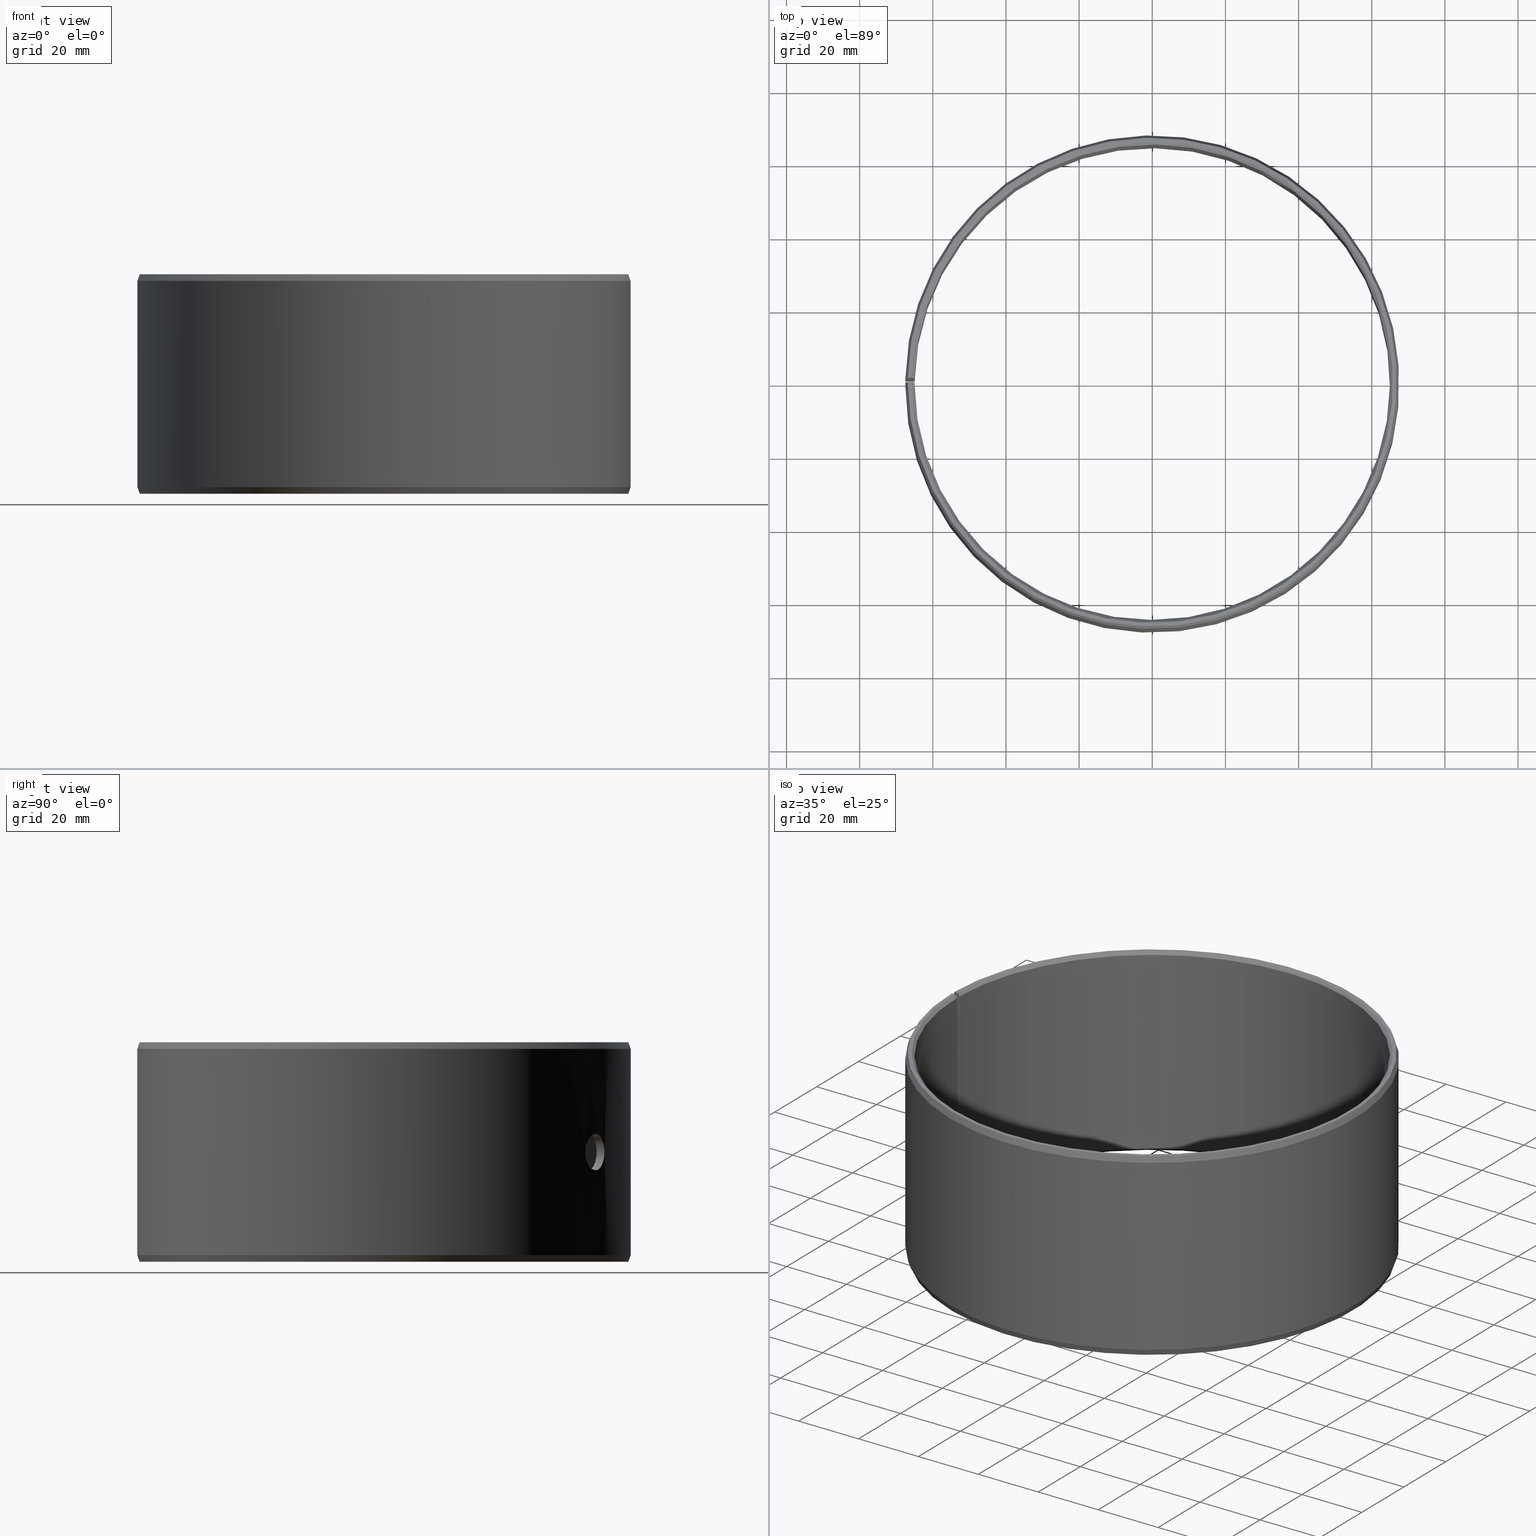
[diagram: canonical four-view strip — front | top / right | iso, engineering-drawing reading convention]
A machine part, canonical four-view strip (front | top / right | iso — engineering-drawing reading convention). The complete STEP part file that produces these views, byte-faithful:
ISO-10303-21;
HEADER;
FILE_DESCRIPTION(('STEP AP203'),'1');
FILE_NAME('440-POM13060LMB.stp','2016-09-20T20:21:43',(' '),(' '),'Spatial InterOp 3D',' ',' ');
FILE_SCHEMA(('CONFIG_CONTROL_DESIGN'));
ENDSEC;
DATA;
#1=DESIGN_CONTEXT('',#51,'design');
#2=APPLICATION_PROTOCOL_DEFINITION('INTERNATIONAL STANDARD','config_control_design',1994,#51);
#3=PRODUCT_CATEGORY_RELATIONSHIP('NONE','NONE',#52,#53);
#4=DATE_AND_TIME(#54,#55);
#5=DATE_TIME_ROLE('creation_date');
#6=DATE_TIME_ROLE('classification_date');
#7=PERSON_AND_ORGANIZATION_ROLE('creator');
#8=PERSON_AND_ORGANIZATION_ROLE('design_supplier');
#9=PERSON_AND_ORGANIZATION_ROLE('classification_officer');
#10=PERSON_AND_ORGANIZATION_ROLE('design_owner');
#11=APPROVAL_PERSON_ORGANIZATION(#56,#57,#58);
#12=APPROVAL_DATE_TIME(#4,#57);
#13=CC_DESIGN_APPROVAL(#57,(#59,#60,#61));
#14=CC_DESIGN_DATE_AND_TIME_ASSIGNMENT(#4,#5,(#61));
#15=CC_DESIGN_DATE_AND_TIME_ASSIGNMENT(#4,#6,(#59));
#16=CC_DESIGN_PERSON_AND_ORGANIZATION_ASSIGNMENT(#56,#10,(#62));
#17=CC_DESIGN_PERSON_AND_ORGANIZATION_ASSIGNMENT(#56,#7,(#61));
#18=CC_DESIGN_PERSON_AND_ORGANIZATION_ASSIGNMENT(#56,#7,(#60));
#19=CC_DESIGN_PERSON_AND_ORGANIZATION_ASSIGNMENT(#56,#8,(#60));
#20=CC_DESIGN_SECURITY_CLASSIFICATION(#59,(#60));
#21=CC_DESIGN_PERSON_AND_ORGANIZATION_ASSIGNMENT(#56,#9,(#59));
#22=SHAPE_DEFINITION_REPRESENTATION(#63,#64);
#23=DESIGN_CONTEXT('',#65,'design');
#24=APPLICATION_PROTOCOL_DEFINITION('INTERNATIONAL STANDARD','config_control_design',1994,#65);
#25=PRODUCT_CATEGORY_RELATIONSHIP('NONE','NONE',#66,#67);
#26=DATE_AND_TIME(#68,#69);
#27=DATE_TIME_ROLE('creation_date');
#28=DATE_TIME_ROLE('classification_date');
#29=PERSON_AND_ORGANIZATION_ROLE('creator');
#30=PERSON_AND_ORGANIZATION_ROLE('design_supplier');
#31=PERSON_AND_ORGANIZATION_ROLE('classification_officer');
#32=PERSON_AND_ORGANIZATION_ROLE('design_owner');
#33=APPROVAL_PERSON_ORGANIZATION(#70,#71,#72);
#34=APPROVAL_DATE_TIME(#26,#71);
#35=CC_DESIGN_APPROVAL(#71,(#73,#74,#75));
#36=CC_DESIGN_DATE_AND_TIME_ASSIGNMENT(#26,#27,(#75));
#37=CC_DESIGN_DATE_AND_TIME_ASSIGNMENT(#26,#28,(#73));
#38=CC_DESIGN_PERSON_AND_ORGANIZATION_ASSIGNMENT(#70,#32,(#76));
#39=CC_DESIGN_PERSON_AND_ORGANIZATION_ASSIGNMENT(#70,#29,(#75));
#40=CC_DESIGN_PERSON_AND_ORGANIZATION_ASSIGNMENT(#70,#29,(#74));
#41=CC_DESIGN_PERSON_AND_ORGANIZATION_ASSIGNMENT(#70,#30,(#74));
#42=CC_DESIGN_SECURITY_CLASSIFICATION(#73,(#74));
#43=CC_DESIGN_PERSON_AND_ORGANIZATION_ASSIGNMENT(#70,#31,(#73));
#44=CONTEXT_DEPENDENT_SHAPE_REPRESENTATION(#77,#78);
#45=SHAPE_DEFINITION_REPRESENTATION(#79,#80);
#46=SHAPE_REPRESENTATION_RELATIONSHIP('NONE','NONE',#80,#81);
#47= (GEOMETRIC_REPRESENTATION_CONTEXT(3)GLOBAL_UNCERTAINTY_ASSIGNED_CONTEXT((#84))GLOBAL_UNIT_ASSIGNED_CONTEXT((#86,#87,#88))REPRESENTATION_CONTEXT('NONE','WORKSPACE'));
#51=APPLICATION_CONTEXT('CONFIGURATION CONTROLLED 3D DESIGNS OF MECHANICAL PARTS AND ASSEMBLIES');
#52=PRODUCT_CATEGORY('part','NONE');
#53=PRODUCT_RELATED_PRODUCT_CATEGORY('detail',' ',(#62));
#54=CALENDAR_DATE(2016,20,8);
#55=LOCAL_TIME(22,21,43.0,#90);
#56=PERSON_AND_ORGANIZATION(#91,#92);
#57=APPROVAL(#93,'SOLID MODEL');
#58=APPROVAL_ROLE('APPROVED');
#59=SECURITY_CLASSIFICATION('','',#94);
#60=PRODUCT_DEFINITION_FORMATION_WITH_SPECIFIED_SOURCE(' ','NONE',#62,.NOT_KNOWN.);
#61=PRODUCT_DEFINITION('NONE','NONE',#60,#1);
#62=PRODUCT('','','PART--DESC',(#95));
#63=PRODUCT_DEFINITION_SHAPE('NONE','NONE',#61);
#64=SHAPE_REPRESENTATION('',(#96,#97),#98);
#65=APPLICATION_CONTEXT('CONFIGURATION CONTROLLED 3D DESIGNS OF MECHANICAL PARTS AND ASSEMBLIES');
#66=PRODUCT_CATEGORY('part','NONE');
#67=PRODUCT_RELATED_PRODUCT_CATEGORY('detail',' ',(#76));
#68=CALENDAR_DATE(2016,20,8);
#69=LOCAL_TIME(22,21,43.0,#99);
#70=PERSON_AND_ORGANIZATION(#100,#101);
#71=APPROVAL(#102,'SOLID MODEL');
#72=APPROVAL_ROLE('APPROVED');
#73=SECURITY_CLASSIFICATION('','',#103);
#74=PRODUCT_DEFINITION_FORMATION_WITH_SPECIFIED_SOURCE(' ','NONE',#76,.NOT_KNOWN.);
#75=PRODUCT_DEFINITION('440-POM13060LMB','440-POM13060LMB',#74,#23);
#76=PRODUCT('440-POM13060LMB','440-POM13060LMB','PART-440-POM13060LMB-DESC',(#104));
#77=(REPRESENTATION_RELATIONSHIP('','',#80,#64)REPRESENTATION_RELATIONSHIP_WITH_TRANSFORMATION(#107)SHAPE_REPRESENTATION_RELATIONSHIP());
#78=PRODUCT_DEFINITION_SHAPE('NAUO-PROD-DEF','NAUO-PROD-DEF',#109);
#79=PRODUCT_DEFINITION_SHAPE('NONE','NONE',#75);
#80=SHAPE_REPRESENTATION('440-POM13060LMB',(#96),#98);
#81=ADVANCED_BREP_SHAPE_REPRESENTATION('',(#110),#47);
#84=UNCERTAINTY_MEASURE_WITH_UNIT(LENGTH_MEASURE(1.0E-006),#86,'','');
#86= (CONVERSION_BASED_UNIT('METRE',#113)LENGTH_UNIT()NAMED_UNIT(#116));
#87= (NAMED_UNIT(#118)PLANE_ANGLE_UNIT()SI_UNIT($,.RADIAN.));
#88= (NAMED_UNIT(#118)SOLID_ANGLE_UNIT()SI_UNIT($,.STERADIAN.));
#90=COORDINATED_UNIVERSAL_TIME_OFFSET(1,0,.AHEAD.);
#91=PERSON('','UNSPECIFIED',$,$,$,$);
#92=ORGANIZATION('UNSPECIFIED','UNSPECIFIED','UNSPECIFIED');
#93=APPROVAL_STATUS('approved');
#94=SECURITY_CLASSIFICATION_LEVEL('unclassified');
#95=MECHANICAL_CONTEXT('',#51,'mechanical');
#96=AXIS2_PLACEMENT_3D('',#124,#125,#126);
#97=AXIS2_PLACEMENT_3D('',#127,#128,#129);
#98= (GEOMETRIC_REPRESENTATION_CONTEXT(3)GLOBAL_UNCERTAINTY_ASSIGNED_CONTEXT((#132))GLOBAL_UNIT_ASSIGNED_CONTEXT((#134,#135,#136))REPRESENTATION_CONTEXT('NONE','WORKSPACE'));
#99=COORDINATED_UNIVERSAL_TIME_OFFSET(1,0,.AHEAD.);
#100=PERSON('','UNSPECIFIED',$,$,$,$);
#101=ORGANIZATION('UNSPECIFIED','UNSPECIFIED','UNSPECIFIED');
#102=APPROVAL_STATUS('approved');
#103=SECURITY_CLASSIFICATION_LEVEL('unclassified');
#104=MECHANICAL_CONTEXT('',#65,'mechanical');
#107=ITEM_DEFINED_TRANSFORMATION('','',#96,#97);
#109=NEXT_ASSEMBLY_USAGE_OCCURRENCE('440-POM13060LMB','440-POM13060LMB','440-POM13060LMB',#61,#75,$);
#110=MANIFOLD_SOLID_BREP('',#138);
#113=LENGTH_MEASURE_WITH_UNIT(LENGTH_MEASURE(1.0),#139);
#116=DIMENSIONAL_EXPONENTS(1.0,0.0,0.0,0.0,0.0,0.0,0.0);
#118=DIMENSIONAL_EXPONENTS(0.0,0.0,0.0,0.0,0.0,0.0,0.0);
#124=CARTESIAN_POINT('',(0.0,0.0,0.0));
#125=DIRECTION('',(0.0,0.0,1.0));
#126=DIRECTION('',(1.0,0.0,0.0));
#127=CARTESIAN_POINT('',(0.0,0.0,0.0));
#128=DIRECTION('',(5.48707263966374E-016,-5.48707263966376E-016,1.0));
#129=DIRECTION('',(1.39349996950756E-015,1.0,5.48707263966375E-016));
#132=UNCERTAINTY_MEASURE_WITH_UNIT(LENGTH_MEASURE(1.0E-006),#134,'','');
#134= (CONVERSION_BASED_UNIT('METRE',#142)LENGTH_UNIT()NAMED_UNIT(#145));
#135= (NAMED_UNIT(#147)PLANE_ANGLE_UNIT()SI_UNIT($,.RADIAN.));
#136= (NAMED_UNIT(#147)SOLID_ANGLE_UNIT()SI_UNIT($,.STERADIAN.));
#138=CLOSED_SHELL('',(#153,#154,#155,#156,#157,#158,#159,#160,#161,#162,#163));
#139= (NAMED_UNIT(#116)LENGTH_UNIT()SI_UNIT($,.METRE.));
#142=LENGTH_MEASURE_WITH_UNIT(LENGTH_MEASURE(1.0),#165);
#145=DIMENSIONAL_EXPONENTS(1.0,0.0,0.0,0.0,0.0,0.0,0.0);
#147=DIMENSIONAL_EXPONENTS(0.0,0.0,0.0,0.0,0.0,0.0,0.0);
#153=ADVANCED_FACE('',(#166),#167,.F.);
#154=ADVANCED_FACE('',(#168),#169,.T.);
#155=ADVANCED_FACE('',(#170),#171,.T.);
#156=ADVANCED_FACE('',(#172),#173,.T.);
#157=ADVANCED_FACE('',(#174),#175,.T.);
#158=ADVANCED_FACE('',(#176),#177,.F.);
#159=ADVANCED_FACE('',(#178),#179,.T.);
#160=ADVANCED_FACE('',(#180),#181,.F.);
#161=ADVANCED_FACE('',(#182,#183),#184,.F.);
#162=ADVANCED_FACE('',(#185,#186),#187,.T.);
#163=ADVANCED_FACE('',(#188,#189),#190,.F.);
#165= (NAMED_UNIT(#145)LENGTH_UNIT()SI_UNIT($,.METRE.));
#166=FACE_OUTER_BOUND('',#192,.T.);
#167=CONICAL_SURFACE('',#193,0.065,0.785398163397462);
#168=FACE_OUTER_BOUND('',#194,.T.);
#169=PLANE('',#195);
#170=FACE_OUTER_BOUND('',#196,.T.);
#171=CONICAL_SURFACE('',#197,0.0668448535783209,0.34906585039887);
#172=FACE_OUTER_BOUND('',#198,.T.);
#173=CONICAL_SURFACE('',#199,0.0675,0.34906585039887);
#174=FACE_OUTER_BOUND('',#200,.T.);
#175=PLANE('',#201);
#176=FACE_OUTER_BOUND('',#202,.T.);
#177=CONICAL_SURFACE('',#203,0.0658,0.785398163397462);
#178=FACE_OUTER_BOUND('',#204,.T.);
#179=PLANE('',#205);
#180=FACE_OUTER_BOUND('',#206,.T.);
#181=PLANE('',#207);
#182=FACE_OUTER_BOUND('',#208,.T.);
#183=FACE_BOUND('',#209,.T.);
#184=CYLINDRICAL_SURFACE('',#210,0.065);
#185=FACE_OUTER_BOUND('',#211,.T.);
#186=FACE_BOUND('',#212,.T.);
#187=CYLINDRICAL_SURFACE('',#213,0.0675);
#188=FACE_OUTER_BOUND('',#214,.T.);
#189=FACE_OUTER_BOUND('',#215,.T.);
#190=CYLINDRICAL_SURFACE('',#216,0.005);
#192=EDGE_LOOP('',(#217,#218,#219,#220));
#193=AXIS2_PLACEMENT_3D('',#221,#222,#223);
#194=EDGE_LOOP('',(#224,#225,#226,#227));
#195=AXIS2_PLACEMENT_3D('',#228,#229,#230);
#196=EDGE_LOOP('',(#231,#232,#233,#234));
#197=AXIS2_PLACEMENT_3D('',#235,#236,#237);
#198=EDGE_LOOP('',(#238,#239,#240,#241));
#199=AXIS2_PLACEMENT_3D('',#242,#243,#244);
#200=EDGE_LOOP('',(#245,#246,#247,#248));
#201=AXIS2_PLACEMENT_3D('',#249,#250,#251);
#202=EDGE_LOOP('',(#252,#253,#254,#255));
#203=AXIS2_PLACEMENT_3D('',#256,#257,#258);
#204=EDGE_LOOP('',(#259,#260,#261,#262,#263,#264,#265,#266));
#205=AXIS2_PLACEMENT_3D('',#267,#268,#269);
#206=EDGE_LOOP('',(#270,#271,#272,#273,#274,#275,#276,#277));
#207=AXIS2_PLACEMENT_3D('',#278,#279,#280);
#208=EDGE_LOOP('',(#281,#282,#283,#284));
#209=EDGE_LOOP('',(#285));
#210=AXIS2_PLACEMENT_3D('',#286,#287,#288);
#211=EDGE_LOOP('',(#289,#290,#291,#292));
#212=EDGE_LOOP('',(#293));
#213=AXIS2_PLACEMENT_3D('',#294,#295,#296);
#214=EDGE_LOOP('',(#297));
#215=EDGE_LOOP('',(#298));
#216=AXIS2_PLACEMENT_3D('',#299,#300,#301);
#217=ORIENTED_EDGE('',*,*,#302,.T.);
#218=ORIENTED_EDGE('',*,*,#303,.F.);
#219=ORIENTED_EDGE('',*,*,#304,.F.);
#220=ORIENTED_EDGE('',*,*,#305,.T.);
#221=CARTESIAN_POINT('',(-6.93889390390723E-018,-6.93889390390723E-018,0.0008));
#222=DIRECTION('',(6.12323399573677E-017,-0.0,-1.0));
#223=DIRECTION('',(-1.0,0.0,-6.12323399573677E-017));
#224=ORIENTED_EDGE('',*,*,#306,.T.);
#225=ORIENTED_EDGE('',*,*,#307,.F.);
#226=ORIENTED_EDGE('',*,*,#302,.F.);
#227=ORIENTED_EDGE('',*,*,#308,.T.);
#228=CARTESIAN_POINT('',(0.00114836834357325,0.0657899783412906,1.61071721856817E-020));
#229=DIRECTION('',(6.12323399573677E-017,0.0,-1.0));
#230=DIRECTION('',(-1.0,0.0,-6.12323399573677E-017));
#231=ORIENTED_EDGE('',*,*,#309,.T.);
#232=ORIENTED_EDGE('',*,*,#310,.F.);
#233=ORIENTED_EDGE('',*,*,#306,.F.);
#234=ORIENTED_EDGE('',*,*,#311,.T.);
#235=CARTESIAN_POINT('',(-6.93889390390723E-018,-6.93889390390723E-018,-3.61111864572607E-035));
#236=DIRECTION('',(-6.12323399573677E-017,0.0,1.0));
#237=DIRECTION('',(1.0,0.0,6.12323399573677E-017));
#238=ORIENTED_EDGE('',*,*,#312,.T.);
#239=ORIENTED_EDGE('',*,*,#313,.F.);
#240=ORIENTED_EDGE('',*,*,#314,.F.);
#241=ORIENTED_EDGE('',*,*,#315,.T.);
#242=CARTESIAN_POINT('',(-1.04083408558608E-017,-6.93889390390723E-018,0.0582));
#243=DIRECTION('',(6.12323399573677E-017,-0.0,-1.0));
#244=DIRECTION('',(-1.0,0.0,-6.12323399573677E-017));
#245=ORIENTED_EDGE('',*,*,#316,.T.);
#246=ORIENTED_EDGE('',*,*,#317,.T.);
#247=ORIENTED_EDGE('',*,*,#318,.F.);
#248=ORIENTED_EDGE('',*,*,#312,.F.);
#249=CARTESIAN_POINT('',(0.00116660355288955,0.0668346727833506,0.06));
#250=DIRECTION('',(-6.12323399573677E-017,0.0,1.0));
#251=DIRECTION('',(1.0,0.0,6.12323399573677E-017));
#252=ORIENTED_EDGE('',*,*,#319,.T.);
#253=ORIENTED_EDGE('',*,*,#320,.F.);
#254=ORIENTED_EDGE('',*,*,#317,.F.);
#255=ORIENTED_EDGE('',*,*,#321,.T.);
#256=CARTESIAN_POINT('',(-1.04083408558608E-017,-6.93889390390723E-018,0.06));
#257=DIRECTION('',(-6.12323399573677E-017,0.0,1.0));
#258=DIRECTION('',(1.0,0.0,6.12323399573677E-017));
#259=ORIENTED_EDGE('',*,*,#320,.T.);
#260=ORIENTED_EDGE('',*,*,#322,.T.);
#261=ORIENTED_EDGE('',*,*,#303,.T.);
#262=ORIENTED_EDGE('',*,*,#307,.T.);
#263=ORIENTED_EDGE('',*,*,#310,.T.);
#264=ORIENTED_EDGE('',*,*,#323,.T.);
#265=ORIENTED_EDGE('',*,*,#313,.T.);
#266=ORIENTED_EDGE('',*,*,#318,.T.);
#267=CARTESIAN_POINT('',(-6.93889390390723E-018,-0.014,0.0));
#268=DIRECTION('',(1.0,0.0,0.0));
#269=DIRECTION('',(0.0,0.0,-1.0));
#270=ORIENTED_EDGE('',*,*,#321,.F.);
#271=ORIENTED_EDGE('',*,*,#316,.F.);
#272=ORIENTED_EDGE('',*,*,#315,.F.);
#273=ORIENTED_EDGE('',*,*,#324,.F.);
#274=ORIENTED_EDGE('',*,*,#311,.F.);
#275=ORIENTED_EDGE('',*,*,#308,.F.);
#276=ORIENTED_EDGE('',*,*,#305,.F.);
#277=ORIENTED_EDGE('',*,*,#325,.F.);
#278=CARTESIAN_POINT('',(-0.000244333690121977,-0.0139978677321895,-1.49611235765866E-020));
#279=DIRECTION('',(0.999847695156391,-0.0174524064372836,-9.3259819610035E-021));
#280=DIRECTION('',(9.32598196100733E-021,1.0686516840419E-018,-1.0));
#281=ORIENTED_EDGE('',*,*,#304,.T.);
#282=ORIENTED_EDGE('',*,*,#322,.F.);
#283=ORIENTED_EDGE('',*,*,#319,.F.);
#284=ORIENTED_EDGE('',*,*,#325,.T.);
#285=ORIENTED_EDGE('',*,*,#326,.T.);
#286=CARTESIAN_POINT('',(-6.93889390390723E-018,-6.93889390390723E-018,0.0));
#287=DIRECTION('',(6.12323399573677E-017,0.0,-1.0));
#288=DIRECTION('',(-1.0,0.0,-6.12323399573677E-017));
#289=ORIENTED_EDGE('',*,*,#314,.T.);
#290=ORIENTED_EDGE('',*,*,#323,.F.);
#291=ORIENTED_EDGE('',*,*,#309,.F.);
#292=ORIENTED_EDGE('',*,*,#324,.T.);
#293=ORIENTED_EDGE('',*,*,#327,.T.);
#294=CARTESIAN_POINT('',(-6.93889390390723E-018,-6.93889390390723E-018,0.0));
#295=DIRECTION('',(6.12323399573677E-017,0.0,-1.0));
#296=DIRECTION('',(-1.0,0.0,-6.12323399573677E-017));
#297=ORIENTED_EDGE('',*,*,#326,.F.);
#298=ORIENTED_EDGE('',*,*,#327,.F.);
#299=CARTESIAN_POINT('',(0.0535729562939944,-0.0321898796816913,0.03));
#300=DIRECTION('',(0.857167300703911,-0.515038074907061,0.0));
#301=DIRECTION('',(-0.515038074907061,-0.857167300703911,0.0));
#302=EDGE_CURVE('',#328,#329,#330,.T.);
#303=EDGE_CURVE('',#331,#329,#332,.T.);
#304=EDGE_CURVE('',#333,#331,#334,.T.);
#305=EDGE_CURVE('',#333,#328,#335,.T.);
#306=EDGE_CURVE('',#336,#337,#338,.T.);
#307=EDGE_CURVE('',#329,#337,#339,.T.);
#308=EDGE_CURVE('',#328,#336,#340,.T.);
#309=EDGE_CURVE('',#341,#342,#343,.T.);
#310=EDGE_CURVE('',#337,#342,#344,.T.);
#311=EDGE_CURVE('',#336,#341,#345,.T.);
#312=EDGE_CURVE('',#346,#347,#348,.T.);
#313=EDGE_CURVE('',#349,#347,#350,.T.);
#314=EDGE_CURVE('',#351,#349,#352,.T.);
#315=EDGE_CURVE('',#351,#346,#353,.T.);
#316=EDGE_CURVE('',#346,#354,#355,.T.);
#317=EDGE_CURVE('',#354,#356,#357,.T.);
#318=EDGE_CURVE('',#347,#356,#358,.T.);
#319=EDGE_CURVE('',#359,#360,#361,.T.);
#320=EDGE_CURVE('',#356,#360,#362,.T.);
#321=EDGE_CURVE('',#354,#359,#363,.T.);
#322=EDGE_CURVE('',#360,#331,#364,.T.);
#323=EDGE_CURVE('',#342,#349,#365,.T.);
#324=EDGE_CURVE('',#341,#351,#366,.T.);
#325=EDGE_CURVE('',#359,#333,#367,.T.);
#326=EDGE_CURVE('',#368,#368,#369,.T.);
#327=EDGE_CURVE('',#370,#370,#371,.T.);
#328=VERTEX_POINT('',#372);
#329=VERTEX_POINT('',#373);
#330=CIRCLE('',#374,0.0658);
#331=VERTEX_POINT('',#375);
#332=LINE('',#376,#377);
#333=VERTEX_POINT('',#378);
#334=CIRCLE('',#379,0.065);
#335=LINE('',#380,#381);
#336=VERTEX_POINT('',#382);
#337=VERTEX_POINT('',#383);
#338=CIRCLE('',#384,0.0668448535783209);
#339=LINE('',#385,#386);
#340=LINE('',#387,#388);
#341=VERTEX_POINT('',#389);
#342=VERTEX_POINT('',#390);
#343=CIRCLE('',#391,0.0675);
#344=LINE('',#392,#393);
#345=LINE('',#394,#395);
#346=VERTEX_POINT('',#396);
#347=VERTEX_POINT('',#397);
#348=CIRCLE('',#398,0.0668448535783209);
#349=VERTEX_POINT('',#399);
#350=LINE('',#400,#401);
#351=VERTEX_POINT('',#402);
#352=CIRCLE('',#403,0.0675);
#353=LINE('',#404,#405);
#354=VERTEX_POINT('',#406);
#355=LINE('',#407,#408);
#356=VERTEX_POINT('',#409);
#357=CIRCLE('',#410,0.0658);
#358=LINE('',#411,#412);
#359=VERTEX_POINT('',#413);
#360=VERTEX_POINT('',#414);
#361=CIRCLE('',#415,0.065);
#362=LINE('',#416,#417);
#363=LINE('',#418,#419);
#364=LINE('',#420,#421);
#365=LINE('',#422,#423);
#366=LINE('',#424,#425);
#367=LINE('',#426,#427);
#368=VERTEX_POINT('',#428);
#369=B_SPLINE_CURVE_WITH_KNOTS('',3,(#429,#430,#431,#432,#433,#434,#435,#436,#437,#438,#439,#440,#441,#442,#443,#444,#445,#446,#447,#448,#449,#450,#451,#452,#453,#454,#455,#456,#457,#458,#459,#460,#461,#462,#463,#464,#465,#466,#467,#468,#469,#470,#471,#472,#473,#474,#475,#476,#477,#478,#479,#480,#481,#482,#483,#484,#485,#486,#487,#488,#489,#490,#491,#492,#493,#494,#495,#496,#497,#498,#499,#500,#501,#502),.UNSPECIFIED.,.T.,.F.,(2,2,2,2,2,2,2,2,2,2,2,2,2,2,2,2,2,2,2,2,2,2,2,2,2,2,2,2,2,2,2,2,2,2,2,2,2,2,2),(-0.000977265362731612,0.0,0.000977265362731594,0.00146589804409739,0.00195453072546319,0.00293179608819479,0.0039090614509264,0.004886326813658,0.0058635921763896,0.0068408575391212,0.00781812290185281,0.00879538826458441,0.00977265362731601,0.0102612863086818,0.0107499189900476,0.0117271843527792,0.0127044497155108,0.0131930823968765,0.0136817150782423,0.0146589804409739,0.0156362458037055,0.0166135111664371,0.0175907765291687,0.0185680418919003,0.0195453072546319,0.0205225726173635,0.0214998379800951,0.0224771033428267,0.0234543687055583,0.0244316340682899,0.0249202667496557,0.0254088994310214,0.0263861647937531,0.0273634301564847,0.0283406955192163,0.0293179608819479,0.0302952262446795,0.0312724916074111,0.0322497569701427),.UNSPECIFIED.);
#370=VERTEX_POINT('',#503);
#371=B_SPLINE_CURVE_WITH_KNOTS('',3,(#504,#505,#506,#507,#508,#509,#510,#511,#512,#513,#514,#515,#516,#517,#518,#519,#520,#521,#522,#523,#524,#525,#526,#527,#528,#529,#530,#531,#532,#533,#534,#535,#536,#537,#538,#539,#540,#541,#542,#543,#544,#545,#546,#547,#548,#549,#550,#551,#552,#553,#554,#555,#556,#557,#558,#559,#560,#561,#562,#563,#564,#565,#566,#567,#568,#569,#570,#571,#572,#573,#574,#575),.UNSPECIFIED.,.T.,.F.,(2,2,2,2,2,2,2,2,2,2,2,2,2,2,2,2,2,2,2,2,2,2,2,2,2,2,2,2,2,2,2,2,2,2,2,2,2,2),(-0.000977239299278939,0.0,0.000977239299278929,0.0014658589489184,0.00195447859855787,0.00293171789783679,0.00390895719711571,0.00488619649639463,0.00586343579567355,0.00684067509495247,0.00781791439423139,0.00879515369351031,0.00977239299278923,0.0107496322920681,0.0117268715913471,0.012704110890626,0.0131927305402655,0.0136813501899049,0.0146585894891838,0.0156358287884628,0.0166130680877417,0.0175903073870206,0.0185675466862996,0.0195447859855785,0.0205220252848574,0.0214992645841364,0.0224765038834153,0.0234537431826942,0.0244309824819731,0.0249196021316126,0.0254082217812521,0.026385461080531,0.02736270037981,0.0283399396790889,0.0293171789783678,0.0302944182776468,0.0312716575769257,0.0322488968762047),.UNSPECIFIED.);
#372=CARTESIAN_POINT('',(0.00114836834357325,0.0657899783412906,-3.81029364385935E-020));
#373=CARTESIAN_POINT('',(-6.93889390390723E-018,0.0658,-1.0842021724855E-019));
#374=AXIS2_PLACEMENT_3D('',#576,#577,#578);
#375=CARTESIAN_POINT('',(-6.93889390390723E-018,0.065,0.0008));
#376=CARTESIAN_POINT('',(-6.93889390390723E-018,0.065,0.0008));
#377=VECTOR('',#579,1.0);
#378=CARTESIAN_POINT('',(0.00113440641842343,0.0649901001851654,0.0008));
#379=AXIS2_PLACEMENT_3D('',#580,#581,#582);
#380=CARTESIAN_POINT('',(0.00113440641842343,0.0649901001851654,0.0008));
#381=VECTOR('',#583,1.0);
#382=CARTESIAN_POINT('',(0.00116660355288956,0.0668346727833506,7.14338653460067E-020));
#383=CARTESIAN_POINT('',(-6.93889390390723E-018,0.0668448535783209,0.0));
#384=AXIS2_PLACEMENT_3D('',#584,#585,#586);
#385=CARTESIAN_POINT('',(-6.93889390390723E-018,0.0658,-1.27957659026802E-019));
#386=VECTOR('',#587,1.0);
#387=CARTESIAN_POINT('',(0.00114836834357325,0.0657899783412906,-5.76403782168453E-020));
#388=VECTOR('',#588,1.0);
#389=CARTESIAN_POINT('',(0.00117803743451663,0.0674897194230564,0.0018));
#390=CARTESIAN_POINT('',(-6.93889390390723E-018,0.0675,0.0018));
#391=AXIS2_PLACEMENT_3D('',#589,#590,#591);
#392=CARTESIAN_POINT('',(-6.93889390390723E-018,0.0668448535783209,0.0));
#393=VECTOR('',#592,1.0);
#394=CARTESIAN_POINT('',(0.00116660355288956,0.0668346727833506,7.14338653460067E-020));
#395=VECTOR('',#593,1.0);
#396=CARTESIAN_POINT('',(0.00116660355288955,0.0668346727833506,0.06));
#397=CARTESIAN_POINT('',(-1.04083408558608E-017,0.0668448535783209,0.06));
#398=AXIS2_PLACEMENT_3D('',#594,#595,#596);
#399=CARTESIAN_POINT('',(-1.04083408558608E-017,0.0675,0.0582));
#400=CARTESIAN_POINT('',(-1.04083408558608E-017,0.0675,0.0582));
#401=VECTOR('',#597,1.0);
#402=CARTESIAN_POINT('',(0.00117803743451663,0.0674897194230564,0.0582));
#403=AXIS2_PLACEMENT_3D('',#598,#599,#600);
#404=CARTESIAN_POINT('',(0.00117803743451663,0.0674897194230564,0.0582));
#405=VECTOR('',#601,1.0);
#406=CARTESIAN_POINT('',(0.00114836834357325,0.0657899783412906,0.06));
#407=CARTESIAN_POINT('',(0.00116660355288955,0.0668346727833506,0.06));
#408=VECTOR('',#602,1.0);
#409=CARTESIAN_POINT('',(-1.04083408558608E-017,0.0658,0.06));
#410=AXIS2_PLACEMENT_3D('',#603,#604,#605);
#411=CARTESIAN_POINT('',(-1.04083408558608E-017,0.0668448535783209,0.06));
#412=VECTOR('',#606,1.0);
#413=CARTESIAN_POINT('',(0.00113440641842342,0.0649901001851654,0.0592));
#414=CARTESIAN_POINT('',(-1.04083408558608E-017,0.065,0.0592));
#415=AXIS2_PLACEMENT_3D('',#607,#608,#609);
#416=CARTESIAN_POINT('',(-1.04083408558608E-017,0.0658,0.06));
#417=VECTOR('',#610,1.0);
#418=CARTESIAN_POINT('',(0.00114836834357325,0.0657899783412906,0.06));
#419=VECTOR('',#611,1.0);
#420=CARTESIAN_POINT('',(-1.04083408558608E-017,0.065,0.0592));
#421=VECTOR('',#612,1.0);
#422=CARTESIAN_POINT('',(-6.93889390390723E-018,0.0675,0.0018));
#423=VECTOR('',#613,1.0);
#424=CARTESIAN_POINT('',(0.00117803743451663,0.0674897194230564,0.0018));
#425=VECTOR('',#614,1.0);
#426=CARTESIAN_POINT('',(0.00113440641842342,0.0649901001851654,0.0592));
#427=VECTOR('',#615,1.0);
#428=CARTESIAN_POINT('',(0.0529755997356271,-0.0376641186363178,0.03));
#429=CARTESIAN_POINT('',(0.0529755997356271,-0.0376641186363178,0.0303304548525843));
#430=CARTESIAN_POINT('',(0.0529755997356271,-0.0376641186363178,0.0296695451474157));
#431=CARTESIAN_POINT('',(0.0529944713916614,-0.0376376149883119,0.0293446369006768));
#432=CARTESIAN_POINT('',(0.0530497386034382,-0.0375596359025136,0.0288652485456031));
#433=CARTESIAN_POINT('',(0.0530726843957445,-0.0375272227893037,0.0287067912797632));
#434=CARTESIAN_POINT('',(0.0531277534095974,-0.0374492202441833,0.0283926140966223));
#435=CARTESIAN_POINT('',(0.0531600261460843,-0.0374034166615543,0.0282364935079543));
#436=CARTESIAN_POINT('',(0.0532684808586168,-0.0372489567405051,0.0277824063057545));
#437=CARTESIAN_POINT('',(0.0533566622159593,-0.0371227645089865,0.02749526854703));
#438=CARTESIAN_POINT('',(0.0535634735487045,-0.0368237335018447,0.0269518483861939));
#439=CARTESIAN_POINT('',(0.0536831344347547,-0.0366493437390429,0.0266946485948805));
#440=CARTESIAN_POINT('',(0.0539421665248316,-0.0362670096623614,0.0262336018518593));
#441=CARTESIAN_POINT('',(0.0540824717625455,-0.0360577460780676,0.0260266728244791));
#442=CARTESIAN_POINT('',(0.0543839950595144,-0.0356013466816024,0.0256611503310565));
#443=CARTESIAN_POINT('',(0.0545429593589677,-0.035357547133866,0.025505892794807));
#444=CARTESIAN_POINT('',(0.0548679964051159,-0.0348510190015406,0.0252564907341099));
#445=CARTESIAN_POINT('',(0.0550364703173534,-0.0345845502206306,0.0251604519992475));
#446=CARTESIAN_POINT('',(0.0553772177350655,-0.0340362738101483,0.0250319677958787));
#447=CARTESIAN_POINT('',(0.055546460793302,-0.0337594002754317,0.0250001769335929));
#448=CARTESIAN_POINT('',(0.0558825062036741,-0.0332001794274518,0.0249998245252385));
#449=CARTESIAN_POINT('',(0.0560510075128058,-0.0329148509586134,0.0250322993521988));
#450=CARTESIAN_POINT('',(0.0563730773571813,-0.0323601453351124,0.0251598853700582));
#451=CARTESIAN_POINT('',(0.0565275887281108,-0.0320893042648786,0.0252542860909942));
#452=CARTESIAN_POINT('',(0.0567500314592199,-0.0316931674542346,0.0254420774560419));
#453=CARTESIAN_POINT('',(0.0568229844185918,-0.0315621518613384,0.0255128852960464));
#454=CARTESIAN_POINT('',(0.0569631121491967,-0.0313085426462453,0.0256676354937148));
#455=CARTESIAN_POINT('',(0.0570304723759347,-0.0311856312447998,0.0257516265017594));
#456=CARTESIAN_POINT('',(0.0572248388438399,-0.0308284174347642,0.0260229850938957));
#457=CARTESIAN_POINT('',(0.0573441976975166,-0.0306055169731675,0.0262295472949105));
#458=CARTESIAN_POINT('',(0.0575629148606107,-0.0301921432084043,0.026696090395137));
#459=CARTESIAN_POINT('',(0.057658812616489,-0.0300082365218246,0.0269487457481951));
#460=CARTESIAN_POINT('',(0.0577838053372703,-0.0297664252744219,0.0273547133524613));
#461=CARTESIAN_POINT('',(0.0578223255493206,-0.0296914919423776,0.0274946182621983));
#462=CARTESIAN_POINT('',(0.0578930778277212,-0.0295533004134784,0.0277838026099377));
#463=CARTESIAN_POINT('',(0.0579253810880277,-0.029489899739647,0.027933664922481));
#464=CARTESIAN_POINT('',(0.0580108775430462,-0.0293215608397027,0.0283879123439525));
#465=CARTESIAN_POINT('',(0.0580535483093826,-0.029236785966634,0.0286995692107353));
#466=CARTESIAN_POINT('',(0.0581112121080621,-0.0291220046064896,0.0293403739244398));
#467=CARTESIAN_POINT('',(0.0581259273303055,-0.0290925518304267,0.0296718358818456));
#468=CARTESIAN_POINT('',(0.0581260333452519,-0.0290923400152117,0.0303245459297209));
#469=CARTESIAN_POINT('',(0.0581119011637238,-0.0291206292159088,0.0306489804455054));
#470=CARTESIAN_POINT('',(0.0580543955871478,-0.0292351031433756,0.0312939250521612));
#471=CARTESIAN_POINT('',(0.0580111518931773,-0.0293210133421902,0.0316098498723603));
#472=CARTESIAN_POINT('',(0.0578981597921326,-0.0295435045326526,0.0322117328527719));
#473=CARTESIAN_POINT('',(0.0578276273074579,-0.0296816276639635,0.0325022548362761));
#474=CARTESIAN_POINT('',(0.0576595517698144,-0.0300068257317648,0.0330495426836272));
#475=CARTESIAN_POINT('',(0.0575637593042636,-0.030190508320926,0.0333014076549537));
#476=CARTESIAN_POINT('',(0.0573480965669958,-0.0305981861890148,0.0337628215157796));
#477=CARTESIAN_POINT('',(0.0572267007962097,-0.0308249679993717,0.0339741031815049));
#478=CARTESIAN_POINT('',(0.0569668045601379,-0.0313026694450848,0.0343375699607558));
#479=CARTESIAN_POINT('',(0.0568280739905094,-0.0315541047297679,0.0344913567242924));
#480=CARTESIAN_POINT('',(0.0565319024862323,-0.0320817007039073,0.0347427340257537));
#481=CARTESIAN_POINT('',(0.0563743887754268,-0.0323578498713673,0.0348393343120623));
#482=CARTESIAN_POINT('',(0.0560534465028898,-0.032910686611625,0.034966992234518));
#483=CARTESIAN_POINT('',(0.0558883760863741,-0.0331903353338847,0.0349996735252023));
#484=CARTESIAN_POINT('',(0.0555484294788939,-0.0337561982986244,0.0350003216548587));
#485=CARTESIAN_POINT('',(0.0553784564869086,-0.0340342287302914,0.0349681309999653));
#486=CARTESIAN_POINT('',(0.0551254088912196,-0.0344414697219849,0.0348732631135646));
#487=CARTESIAN_POINT('',(0.0550412856112242,-0.0345757362928775,0.0348338193029951));
#488=CARTESIAN_POINT('',(0.0548735728135403,-0.0348412925794675,0.0347389673133048));
#489=CARTESIAN_POINT('',(0.0547896432584549,-0.0349731036124867,0.0346832296494147));
#490=CARTESIAN_POINT('',(0.0545440350075909,-0.0353559073395754,0.0344952439050371));
#491=CARTESIAN_POINT('',(0.0543870107246466,-0.0355967279140577,0.0343418635367543));
#492=CARTESIAN_POINT('',(0.0540872149018489,-0.0360506193831881,0.0339797025328785));
#493=CARTESIAN_POINT('',(0.0539436810316299,-0.0362647585349587,0.0337687848482971));
#494=CARTESIAN_POINT('',(0.0536843828000131,-0.036647516671976,0.0333078790177135));
#495=CARTESIAN_POINT('',(0.0535670205380865,-0.0368185806710234,0.0330564661012917));
#496=CARTESIAN_POINT('',(0.0533585973571343,-0.0371199900328065,0.032510795742914));
#497=CARTESIAN_POINT('',(0.0532691305861992,-0.0372480257582398,0.032219580692711));
#498=CARTESIAN_POINT('',(0.0531251472077511,-0.0374530964067166,0.0316181960536934));
#499=CARTESIAN_POINT('',(0.0530694925214274,-0.0375317621690563,0.031304097631953));
#500=CARTESIAN_POINT('',(0.0529944745592151,-0.0376376124932114,0.0306573547183369));
#501=CARTESIAN_POINT('',(0.0529755997356271,-0.0376641186363178,0.0303304548525843));
#502=CARTESIAN_POINT('',(0.0529755997356271,-0.0376641186363178,0.0296695451474157));
#503=CARTESIAN_POINT('',(0.0551246493951795,-0.0389553979450672,0.03));
#504=CARTESIAN_POINT('',(0.0551246493951795,-0.0389553979450672,0.0296695546587731));
#505=CARTESIAN_POINT('',(0.0551246493951795,-0.0389553979450672,0.0303304453412269));
#506=CARTESIAN_POINT('',(0.0551434393443032,-0.0389288473414133,0.0306553460252825));
#507=CARTESIAN_POINT('',(0.0551984740144593,-0.0388507333391216,0.0311347254260006));
#508=CARTESIAN_POINT('',(0.0552213239489283,-0.0388182645091561,0.0312931801059165));
#509=CARTESIAN_POINT('',(0.0552761666210437,-0.0387401301218505,0.0316073528265825));
#510=CARTESIAN_POINT('',(0.0553083086491289,-0.038694249580905,0.0317634734225602));
#511=CARTESIAN_POINT('',(0.0554163343086886,-0.0385395344654599,0.0322175641031194));
#512=CARTESIAN_POINT('',(0.0555041776389466,-0.0384131397107111,0.0325047054699773));
#513=CARTESIAN_POINT('',(0.0557102479488591,-0.0381136630525981,0.0330481325215065));
#514=CARTESIAN_POINT('',(0.0558295061005694,-0.0379390242315718,0.0333053423813362));
#515=CARTESIAN_POINT('',(0.0560877466415641,-0.0375561977275259,0.0337664039557517));
#516=CARTESIAN_POINT('',(0.0562276579530656,-0.0373466902986731,0.0339733362985402));
#517=CARTESIAN_POINT('',(0.0565284391080719,-0.036889840974948,0.0343388585285903));
#518=CARTESIAN_POINT('',(0.0566870709028618,-0.0366458257237834,0.0344941215060829));
#519=CARTESIAN_POINT('',(0.0570115466874084,-0.0361389553644462,0.0347435206168236));
#520=CARTESIAN_POINT('',(0.0571797873178336,-0.0358723584150521,0.0348395539607356));
#521=CARTESIAN_POINT('',(0.0575202246492081,-0.0353239002981731,0.0349680345293251));
#522=CARTESIAN_POINT('',(0.0576893862029768,-0.035046984561022,0.0349998232914185));
#523=CARTESIAN_POINT('',(0.0580254207428873,-0.0344877797909292,0.0350001752533573));
#524=CARTESIAN_POINT('',(0.0581939962251395,-0.0342025095053623,0.0349677027927312));
#525=CARTESIAN_POINT('',(0.058516368751715,-0.0336479931233538,0.0348401209113646));
#526=CARTESIAN_POINT('',(0.0586711020926707,-0.033377290270285,0.0347457230876724));
#527=CARTESIAN_POINT('',(0.0589682530937431,-0.0328494574327752,0.034495344300681));
#528=CARTESIAN_POINT('',(0.0591101067938795,-0.0325932319782646,0.0343388417174521));
#529=CARTESIAN_POINT('',(0.0593700051268868,-0.0321173782741718,0.0339770252475803));
#530=CARTESIAN_POINT('',(0.0594897624884599,-0.0318947146904115,0.0337704616249824));
#531=CARTESIAN_POINT('',(0.0597092874444632,-0.0314818306168905,0.0333039255006539));
#532=CARTESIAN_POINT('',(0.0598055959583304,-0.0312981407472563,0.0330512398553684));
#533=CARTESIAN_POINT('',(0.0599311441912632,-0.0310566609033802,0.0326452651573095));
#534=CARTESIAN_POINT('',(0.0599698417196024,-0.0309818351215289,0.032505359758074));
#535=CARTESIAN_POINT('',(0.0600409278690456,-0.0308438487221654,0.032216179500742));
#536=CARTESIAN_POINT('',(0.0600733896675929,-0.0307805427722611,0.0320663151619938));
#537=CARTESIAN_POINT('',(0.0601593153924909,-0.03061245840413,0.0316120538922929));
#538=CARTESIAN_POINT('',(0.0602022106724301,-0.0305278226038893,0.0313003963754822));
#539=CARTESIAN_POINT('',(0.0602601804187616,-0.0304132336110531,0.0306596116652656));
#540=CARTESIAN_POINT('',(0.0602749767889007,-0.0303838307840117,0.0303281569013639));
#541=CARTESIAN_POINT('',(0.0602750832051408,-0.0303836196761895,0.0296754552100381));
#542=CARTESIAN_POINT('',(0.0602608728443688,-0.0304118612458369,0.0293510313060474));
#543=CARTESIAN_POINT('',(0.0602030635575675,-0.030526140251999,0.0287061206800817));
#544=CARTESIAN_POINT('',(0.060159589851681,-0.0306119145101661,0.0283901770992497));
#545=CARTESIAN_POINT('',(0.0600460339196205,-0.0308340618735836,0.0277882945446544));
#546=CARTESIAN_POINT('',(0.0599751693485966,-0.0309719640348829,0.0274977973467514));
#547=CARTESIAN_POINT('',(0.0598063379539992,-0.0312967320195408,0.0269504694144773));
#548=CARTESIAN_POINT('',(0.0597101435158172,-0.0314801831055633,0.026698595045666));
#549=CARTESIAN_POINT('',(0.0594936801077365,-0.031887382995122,0.0262371781966666));
#550=CARTESIAN_POINT('',(0.0593718792146927,-0.0321139205492133,0.0260258958404252));
#551=CARTESIAN_POINT('',(0.0591112287230698,-0.0325912039264304,0.0256624116538591));
#552=CARTESIAN_POINT('',(0.0589721589988049,-0.0328424415967562,0.0255086268829692));
#553=CARTESIAN_POINT('',(0.0586754293621593,-0.0333696792939775,0.0252572615864784));
#554=CARTESIAN_POINT('',(0.0585176804835797,-0.0336457014605785,0.0251606583978952));
#555=CARTESIAN_POINT('',(0.0581964329064322,-0.0341983530732085,0.025033004384742));
#556=CARTESIAN_POINT('',(0.0580312885478873,-0.0344779418214109,0.025000327463994));
#557=CARTESIAN_POINT('',(0.0576913691614843,-0.0350437561777001,0.0249996773857883));
#558=CARTESIAN_POINT('',(0.0575214577615943,-0.0353218637365079,0.0250318684743111));
#559=CARTESIAN_POINT('',(0.0572686445928895,-0.0357292301442829,0.0251267319688533));
#560=CARTESIAN_POINT('',(0.0571846187555157,-0.0358635474545355,0.0251661734120749));
#561=CARTESIAN_POINT('',(0.0570171375328378,-0.0361292220480715,0.0252610173227034));
#562=CARTESIAN_POINT('',(0.0569333370302716,-0.0362611102995739,0.0253167525400498));
#563=CARTESIAN_POINT('',(0.0566881413577066,-0.0366441887841729,0.0255047433065251));
#564=CARTESIAN_POINT('',(0.0565314504470592,-0.0368852148139639,0.025658125860347));
#565=CARTESIAN_POINT('',(0.0562323976091843,-0.03733954231968,0.026020276452669));
#566=CARTESIAN_POINT('',(0.056089261972773,-0.0375539361547254,0.026231200452654));
#567=CARTESIAN_POINT('',(0.0558307491025768,-0.0379371965755072,0.0266921317836579));
#568=CARTESIAN_POINT('',(0.0557137850951561,-0.0381084991731653,0.0269435490949464));
#569=CARTESIAN_POINT('',(0.0555061177458902,-0.0384103430294466,0.0274891951846074));
#570=CARTESIAN_POINT('',(0.0554169811778534,-0.038538602560883,0.0277804500804581));
#571=CARTESIAN_POINT('',(0.0552735668819755,-0.0387440123677974,0.0283818415494518));
#572=CARTESIAN_POINT('',(0.0552181499432346,-0.0388228041658972,0.0286958949986499));
#573=CARTESIAN_POINT('',(0.0551434424662289,-0.0389288448252815,0.0293426548515311));
#574=CARTESIAN_POINT('',(0.0551246493951795,-0.0389553979450672,0.0296695546587731));
#575=CARTESIAN_POINT('',(0.0551246493951795,-0.0389553979450672,0.0303304453412269));
#576=CARTESIAN_POINT('',(-6.93889390390723E-018,-6.93889390390723E-018,-1.0842021724855E-019));
#577=DIRECTION('',(6.12323399573677E-017,0.0,-1.0));
#578=DIRECTION('',(-1.0,0.0,-6.12323399573677E-017));
#579=DIRECTION('',(0.0,0.707106781186552,-0.707106781186544));
#580=CARTESIAN_POINT('',(-6.93889390390723E-018,-6.93889390390723E-018,0.0008));
#581=DIRECTION('',(6.12323399573677E-017,0.0,-1.0));
#582=DIRECTION('',(-1.0,0.0,-6.12323399573677E-017));
#583=DIRECTION('',(0.012340714939827,0.706999085398828,-0.707106781186544));
#584=CARTESIAN_POINT('',(-6.93889390390723E-018,-6.93889390390723E-018,-3.61111864572607E-035));
#585=DIRECTION('',(6.12323399573677E-017,0.0,-1.0));
#586=DIRECTION('',(-1.0,0.0,-6.12323399573677E-017));
#587=DIRECTION('',(0.0,1.0,1.2246467991471E-016));
#588=DIRECTION('',(0.0174524064372836,0.999847695156391,1.23533331598752E-016));
#589=CARTESIAN_POINT('',(-6.93889390390723E-018,-6.93889390390723E-018,0.0018));
#590=DIRECTION('',(6.12323399573677E-017,0.0,-1.0));
#591=DIRECTION('',(-1.0,0.0,-6.12323399573677E-017));
#592=DIRECTION('',(0.0,0.342020143325672,0.939692620785907));
#593=DIRECTION('',(0.00596907455105761,0.341968052001232,0.939692620785907));
#594=CARTESIAN_POINT('',(-1.04083408558608E-017,-6.93889390390723E-018,0.06));
#595=DIRECTION('',(6.12323399573677E-017,0.0,-1.0));
#596=DIRECTION('',(-1.0,0.0,-6.12323399573677E-017));
#597=DIRECTION('',(0.0,-0.342020143325672,0.939692620785907));
#598=CARTESIAN_POINT('',(-1.04083408558608E-017,-6.93889390390723E-018,0.0582));
#599=DIRECTION('',(6.12323399573677E-017,0.0,-1.0));
#600=DIRECTION('',(-1.0,0.0,-6.12323399573677E-017));
#601=DIRECTION('',(-0.00596907455105761,-0.341968052001232,0.939692620785907));
#602=DIRECTION('',(-0.0174524064372836,-0.999847695156391,-1.0686516840419E-018));
#603=CARTESIAN_POINT('',(-1.04083408558608E-017,-6.93889390390723E-018,0.06));
#604=DIRECTION('',(6.12323399573677E-017,0.0,-1.0));
#605=DIRECTION('',(-1.0,0.0,-6.12323399573677E-017));
#606=DIRECTION('',(0.0,-1.0,0.0));
#607=CARTESIAN_POINT('',(-1.04083408558608E-017,-6.93889390390723E-018,0.0592));
#608=DIRECTION('',(6.12323399573677E-017,0.0,-1.0));
#609=DIRECTION('',(-1.0,0.0,-6.12323399573677E-017));
#610=DIRECTION('',(0.0,-0.707106781186551,-0.707106781186545));
#611=DIRECTION('',(-0.012340714939827,-0.706999085398827,-0.707106781186545));
#612=DIRECTION('',(5.94083382183838E-017,0.0,-1.0));
#613=DIRECTION('',(-6.15150168786102E-017,0.0,1.0));
#614=DIRECTION('',(-6.15149738255459E-017,4.93339251996452E-021,1.0));
#615=DIRECTION('',(5.94086160226834E-017,3.18332196910583E-020,-1.0));
ENDSEC;
END-ISO-10303-21;
